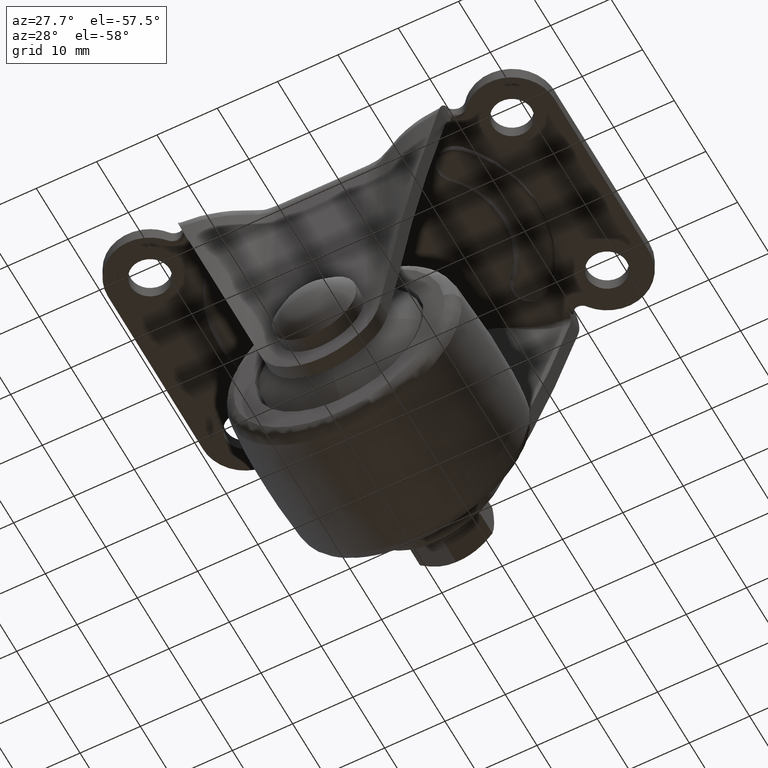
[diagram: clean part render]
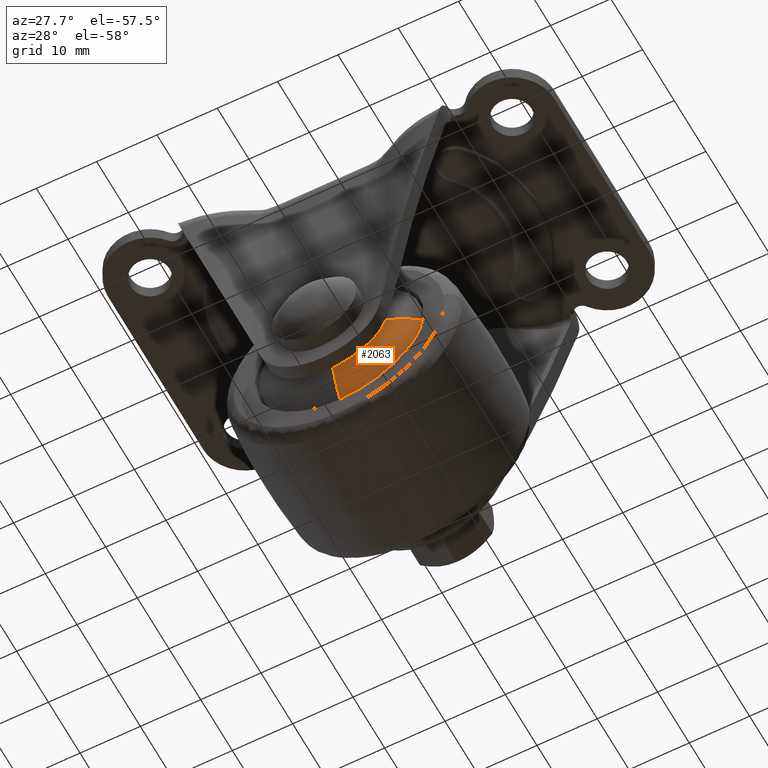
[diagram: same view with one face highlighted and labeled with its STEP entity id]
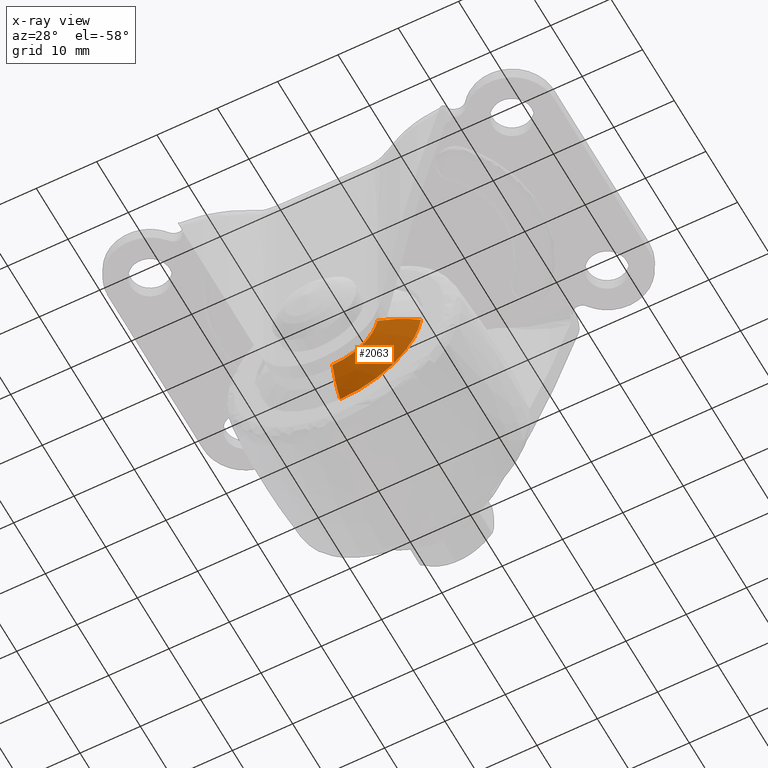
[diagram: x-ray of the same camera — body ghosted, the highlighted face saturated]
A machine part, auxiliary view. The second image highlights one B-rep face of the part: STEP entity #2063.
The next image is the same camera in x-ray: the body ghosted, the highlighted face saturated — about 0% of this face is hidden behind the body in this view.
In plain terms, the highlighted face is a freeform B-spline surface patch.
Its self-contained STEP definition (entity closure, byte-faithful):
#718=CARTESIAN_POINT('',(13.409675991670900,-12.182793590311441,-41.558743749918747));
#719=VERTEX_POINT('',#718);
#735=CARTESIAN_POINT('',(0.0,-12.182769035444821,-53.500006565186517));
#736=VERTEX_POINT('',#735);
#737=CARTESIAN_POINT('',(0.0,-12.182769035444821,-53.500006565186517));
#738=CARTESIAN_POINT('',(12.021638830865362,-12.182781312878129,-53.500001341703097));
#739=CARTESIAN_POINT('',(13.409675991670893,-12.182793590311446,-41.558743749918762));
#747=(BOUNDED_CURVE()B_SPLINE_CURVE(2,(#737,#738,#739),.UNSPECIFIED.,.F.,.U.)B_SPLINE_CURVE_WITH_KNOTS((3,3),(0.0,0.230000245529099),.UNSPECIFIED.)CURVE()GEOMETRIC_REPRESENTATION_ITEM()RATIONAL_B_SPLINE_CURVE((1.0,0.730537951036392,0.956886601452015))REPRESENTATION_ITEM(''));
#748=EDGE_CURVE('',#736,#719,#747,.T.);
#917=CARTESIAN_POINT('',(0.0,-14.618241481884580,-47.509080533641637));
#918=VERTEX_POINT('',#917);
#932=CARTESIAN_POINT('',(7.458860093009480,-14.618240794113630,-40.867030546176750));
#933=VERTEX_POINT('',#932);
#934=CARTESIAN_POINT('',(0.0,-14.618241481884580,-47.509080533641637));
#935=CARTESIAN_POINT('',(6.686776586935596,-14.618241137999101,-47.509082044707753));
#936=CARTESIAN_POINT('',(7.458860093009480,-14.618240794113632,-40.867030546176750));
#944=(BOUNDED_CURVE()B_SPLINE_CURVE(2,(#934,#935,#936),.UNSPECIFIED.,.F.,.U.)B_SPLINE_CURVE_WITH_KNOTS((3,3),(0.0,0.229999999981900),.UNSPECIFIED.)CURVE()GEOMETRIC_REPRESENTATION_ITEM()RATIONAL_B_SPLINE_CURVE((1.0,0.730538238712829,0.956886118155034))REPRESENTATION_ITEM(''));
#945=EDGE_CURVE('',#918,#933,#944,.T.);
#2001=CARTESIAN_POINT('',(0.0,-14.618241481884585,-47.509080533641630));
#2002=CARTESIAN_POINT('',(0.0,-13.891256796567301,-50.704047239213679));
#2003=CARTESIAN_POINT('',(0.0,-12.182769035444823,-53.500006565186524));
#2011=(BOUNDED_CURVE()B_SPLINE_CURVE(2,(#2001,#2002,#2003),.UNSPECIFIED.,.F.,.U.)B_SPLINE_CURVE_WITH_KNOTS((3,3),(0.110946488871639,0.202706852760419),.UNSPECIFIED.)CURVE()GEOMETRIC_REPRESENTATION_ITEM()RATIONAL_B_SPLINE_CURVE((0.928583646167967,0.913784296243747,0.923356615400687))REPRESENTATION_ITEM(''));
#2012=EDGE_CURVE('',#918,#736,#2011,.T.);
#2018=CARTESIAN_POINT('',(7.458860093009480,-14.618240794113625,-40.867030546176750));
#2019=CARTESIAN_POINT('',(10.632433766906734,-13.891261331126861,-41.235922267916180));
#2020=CARTESIAN_POINT('',(13.409675991670891,-12.182793590311441,-41.558743749918754));
#2028=(BOUNDED_CURVE()B_SPLINE_CURVE(2,(#2018,#2019,#2020),.UNSPECIFIED.,.F.,.U.)B_SPLINE_CURVE_WITH_KNOTS((3,3),(0.110946532981696,0.202706186447544),.UNSPECIFIED.)CURVE()GEOMETRIC_REPRESENTATION_ITEM()RATIONAL_B_SPLINE_CURVE((0.888548786982071,0.874387615330748,0.883546994393507))REPRESENTATION_ITEM(''));
#2029=EDGE_CURVE('',#933,#719,#2028,.T.);
#2034=CARTESIAN_POINT('',(-0.046678441034058,-14.687123446489117,-47.194684341829479));
#2035=CARTESIAN_POINT('',(-0.069590468291353,-13.943125665402613,-50.726181968910765));
#2036=CARTESIAN_POINT('',(-0.089370273331840,-12.011721982796670,-53.774901044712713));
#2037=CARTESIAN_POINT('',(-0.023370623377840,-14.687123446489123,-47.194684341829493));
#2038=CARTESIAN_POINT('',(-0.034842051043180,-13.943125665402610,-50.726181968910765));
#2039=CARTESIAN_POINT('',(-0.044745260401672,-12.011721982796667,-53.774901044712713));
#2040=CARTESIAN_POINT('',(6.406806696468713,-14.687123446489119,-47.194684341829500));
#2041=CARTESIAN_POINT('',(9.551576024874649,-13.943125665402610,-50.726181968910787));
#2042=CARTESIAN_POINT('',(12.266435060029066,-12.011721982796669,-53.774901044712728));
#2043=CARTESIAN_POINT('',(7.149384813685664,-14.687123446489123,-40.806459253960163));
#2044=CARTESIAN_POINT('',(10.658647250375392,-13.943125665402615,-41.202308301171293));
#2045=CARTESIAN_POINT('',(13.688170830028325,-12.011721982796674,-41.544042225078250));
#2046=CARTESIAN_POINT('',(7.152199274316219,-14.687123446489123,-40.782247110359300));
#2047=CARTESIAN_POINT('',(10.662843183849793,-13.943125665402613,-41.166211671245449));
#2048=CARTESIAN_POINT('',(13.693559380079751,-12.011721982796670,-41.497685794922830));
#2056=(BOUNDED_SURFACE()B_SPLINE_SURFACE(2,2,((#2034,#2037,#2040,#2043,#2046),(#2035,#2038,#2041,#2044,#2047),(#2036,#2039,#2042,#2045,#2048)),.UNSPECIFIED.,.F.,.F.,.U.)B_SPLINE_SURFACE_WITH_KNOTS((3,3),(3,1,1,3),(0.0,7.160196184574899),(0.0,0.104870769986990,21.079002845938899,21.183896006180721),.UNSPECIFIED.)GEOMETRIC_REPRESENTATION_ITEM()RATIONAL_B_SPLINE_SURFACE(((0.932629244453249,0.931376080347268,0.679490356997627,0.891074589357244,0.892127471952186),(0.914964975091531,0.913735546278491,0.666620611848542,0.874197377258864,0.875230317950983),(0.926864539057480,0.925619120925504,0.675290336731638,0.885566738811219,0.886613113398813)))REPRESENTATION_ITEM('')SURFACE());
#2057=ORIENTED_EDGE('',*,*,#748,.T.);
#2058=ORIENTED_EDGE('',*,*,#2029,.F.);
#2059=ORIENTED_EDGE('',*,*,#945,.F.);
#2060=ORIENTED_EDGE('',*,*,#2012,.T.);
#2061=EDGE_LOOP('',(#2057,#2058,#2059,#2060));
#2062=FACE_OUTER_BOUND('',#2061,.T.);
#2063=ADVANCED_FACE('',(#2062),#2056,.T.);